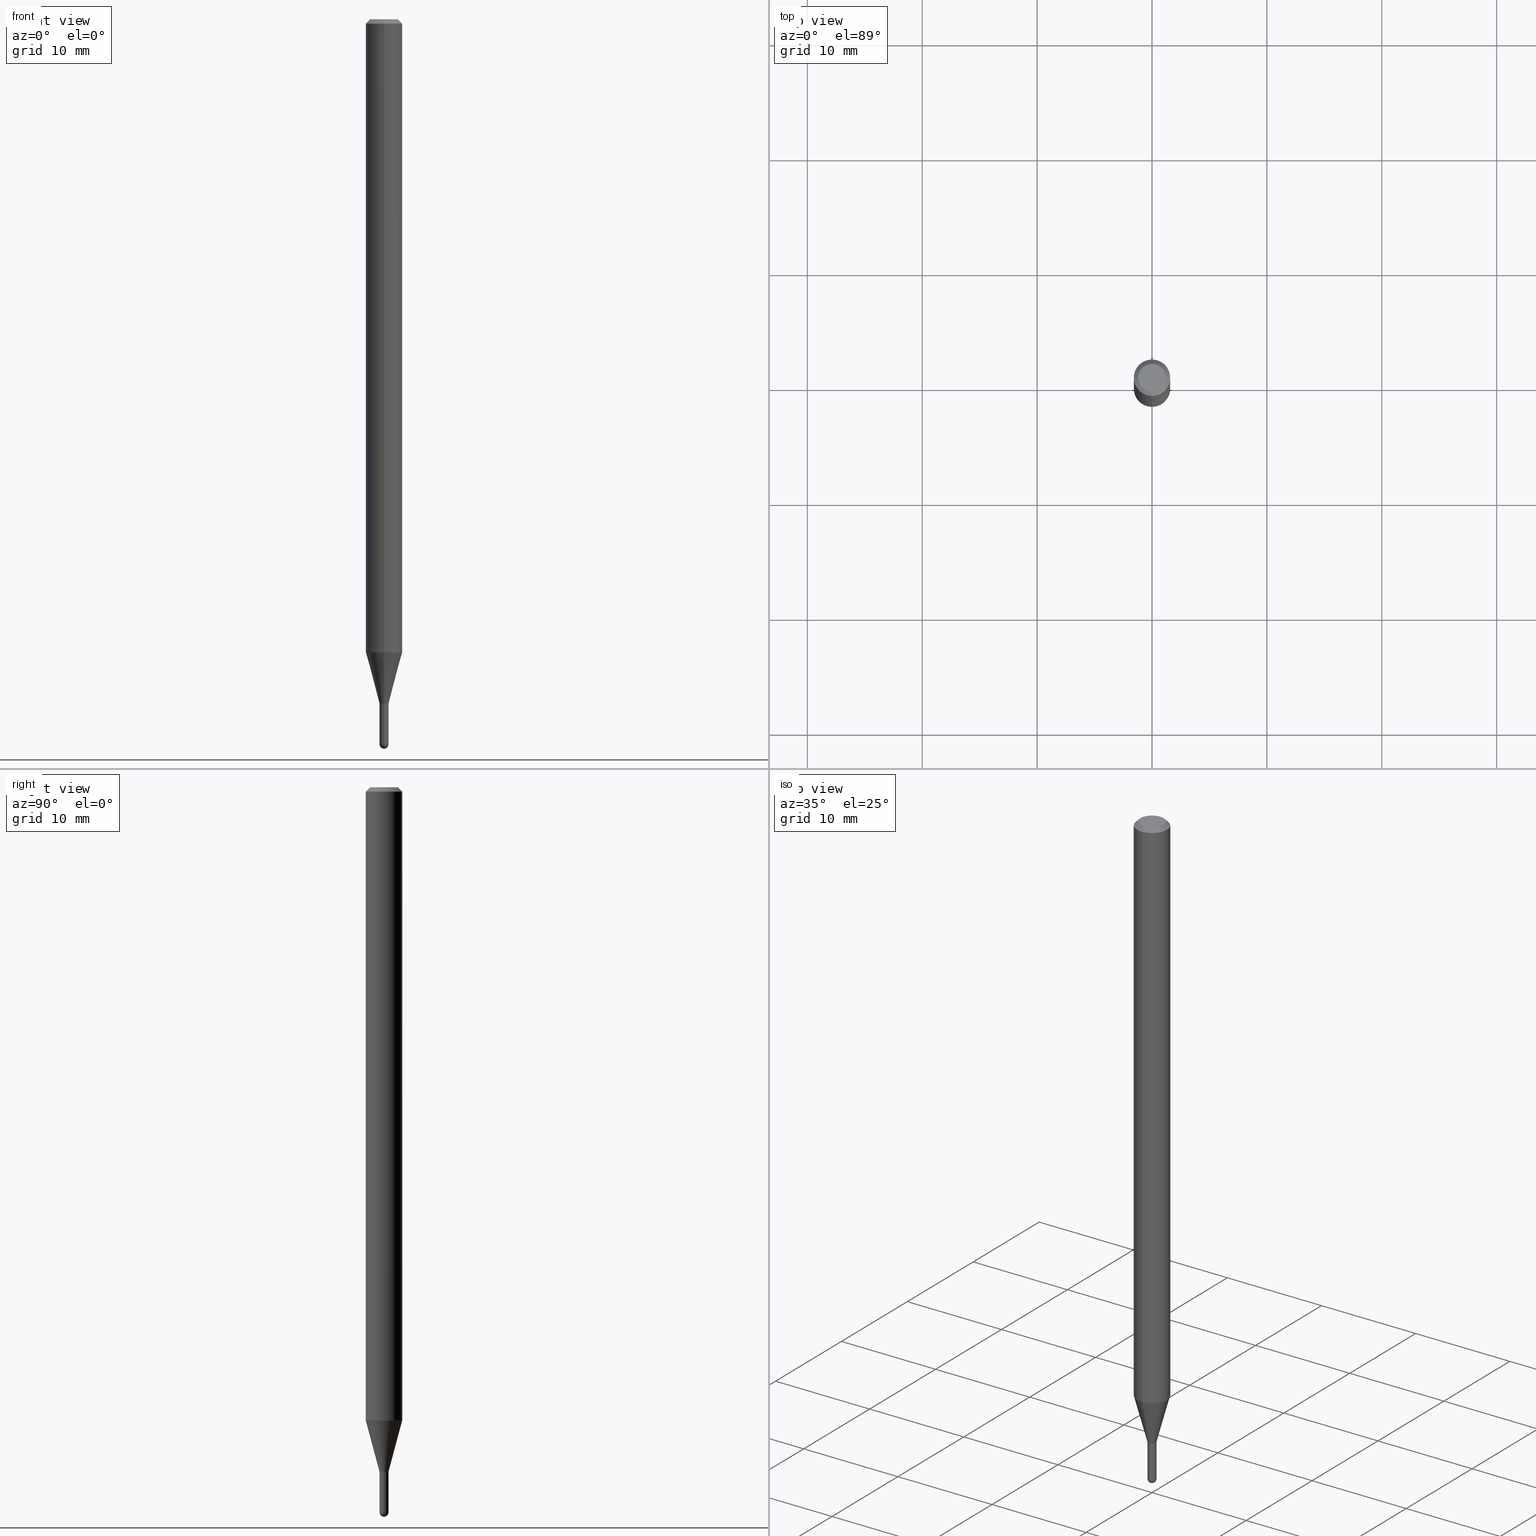
[diagram: canonical four-view strip — front | top / right | iso, engineering-drawing reading convention]
A machine part, canonical four-view strip (front | top / right | iso — engineering-drawing reading convention). The complete STEP part file that produces these views, byte-faithful:
ISO-10303-21;
HEADER;
FILE_DESCRIPTION (( 'STEP AP203' ),
    '1' );
FILE_NAME ('04459.STEP',
    '2024-03-08T19:44:21',
    ( '' ),
    ( '' ),
    'SwSTEP 2.0',
    'SolidWorks 2023',
    '' );
FILE_SCHEMA (( 'CONFIG_CONTROL_DESIGN' ));
ENDSEC;

DATA;
#1 = MANIFOLD_SOLID_BREP ( 'Body-Move/Copy2[2]', #462 ) ;
#2 = ADVANCED_FACE ( 'NONE', ( #105 ), #267, .T. ) ;
#3 = LENGTH_MEASURE_WITH_UNIT ( LENGTH_MEASURE( 0.02539999999999999897 ), #55 );
#4 = VECTOR ( 'NONE', #459, 39.37007874015748854 ) ;
#5 = DIRECTION ( 'NONE',  ( -2.445469596993278567E-29, 3.491480206360876224E-15, 1.000000000000000000 ) ) ;
#6 = ORIENTED_EDGE ( 'NONE', *, *, #116, .T. ) ;
#7 = LOCAL_TIME ( 14, 44, 21.00000000000000000, #242 ) ;
#8 = ORIENTED_EDGE ( 'NONE', *, *, #496, .T. ) ;
#9 = CARTESIAN_POINT ( 'NONE',  ( 5.733403470150743231E-29, -8.185775343813075458E-15, -2.344500000000000473 ) ) ;
#10 = SPHERICAL_SURFACE ( 'NONE', #281, 0.01549999999999993917 ) ;
#11 = VERTEX_POINT ( 'NONE', #396 ) ;
#12 = DIRECTION ( 'NONE',  ( -6.982962677686265922E-15, -1.000000000000000000, 0.000000000000000000 ) ) ;
#13 = DIRECTION ( 'NONE',  ( -2.445469596993278567E-29, 3.491480206360876224E-15, 1.000000000000000000 ) ) ;
#14 = DIRECTION ( 'NONE',  ( -2.445469596993278567E-29, 3.491480206360876224E-15, 1.000000000000000000 ) ) ;
#15 = AXIS2_PLACEMENT_3D ( 'NONE', #337, #361, #80 ) ;
#16 = ORIENTED_EDGE ( 'NONE', *, *, #116, .F. ) ;
#17 = AXIS2_PLACEMENT_3D ( 'NONE', #391, #470, #350 ) ;
#18 = LINE ( 'NONE', #285, #191 ) ;
#19 = LOCAL_TIME ( 14, 44, 21.00000000000000000, #85 ) ;
#20 = CC_DESIGN_PERSON_AND_ORGANIZATION_ASSIGNMENT ( #290, #483, ( #44 ) ) ;
#21 = FACE_OUTER_BOUND ( 'NONE', #43, .T. ) ;
#22 = DATE_AND_TIME ( #400, #97 ) ;
#23 = AXIS2_PLACEMENT_3D ( 'NONE', #477, #14, #76 ) ;
#24 = CC_DESIGN_PERSON_AND_ORGANIZATION_ASSIGNMENT ( #408, #139, ( #443 ) ) ;
#25 = ORIENTED_EDGE ( 'NONE', *, *, #74, .F. ) ;
#26 = ORIENTED_EDGE ( 'NONE', *, *, #338, .T. ) ;
#27 = AXIS2_PLACEMENT_3D ( 'NONE', #255, #485, #12 ) ;
#28 = AXIS2_PLACEMENT_3D ( 'NONE', #456, #180, #184 ) ;
#29 = CARTESIAN_POINT ( 'NONE',  ( -1.082359215040773354E-16, -0.01550000000000783910, -2.345000000000000195 ) ) ;
#30 = ORIENTED_EDGE ( 'NONE', *, *, #299, .T. ) ;
#31 = DIRECTION ( 'NONE',  ( -2.445469596993278847E-29, 3.491480206360875830E-15, 1.000000000000000000 ) ) ;
#32 = APPROVAL ( #220, 'UNSPECIFIED' ) ;
#33 = CARTESIAN_POINT ( 'NONE',  ( 5.734624350504145902E-29, -8.187523739587176748E-15, -2.345000000000000195 ) ) ;
#34 = ADVANCED_FACE ( 'NONE', ( #179 ), #169, .T. ) ;
#35 = CIRCLE ( 'NONE', #23, 0.01550000000000019765 ) ;
#36 = CARTESIAN_POINT ( 'NONE',  ( 6.074441741218743853E-29, -8.676483588894474032E-15, -2.484500000000000153 ) ) ;
#37 = AXIS2_PLACEMENT_3D ( 'NONE', #33, #113, #394 ) ;
#38 = CARTESIAN_POINT ( 'NONE',  ( 6.075767248966972494E-29, -8.674585386355795965E-15, -2.484500000000000153 ) ) ;
#39 = ORIENTED_EDGE ( 'NONE', *, *, #386, .F. ) ;
#40 = APPROVAL_STATUS ( 'not_yet_approved' ) ;
#41 = ADVANCED_FACE ( 'NONE', ( #436 ), #311, .T. ) ;
#42 = DIRECTION ( 'NONE',  ( -4.851104656540964275E-15, -0.7071067811865500152, -0.7071067811865450192 ) ) ;
#43 = EDGE_LOOP ( 'NONE', ( #445, #273 ) ) ;
#44 = PRODUCT_DEFINITION ( 'UNKNOWN', '', #193, #117 ) ;
#45 = DIRECTION ( 'NONE',  ( -2.445469596993278567E-29, 3.491480206360875830E-15, 1.000000000000000000 ) ) ;
#46 = APPROVAL_ROLE ( '' ) ;
#47 = AXIS2_PLACEMENT_3D ( 'NONE', #120, #5, #444 ) ;
#48 = VERTEX_POINT ( 'NONE', #328 ) ;
#49 = CARTESIAN_POINT ( 'NONE',  ( -1.047444401652366332E-16, -0.01500000000000818734, -2.345000000000000195 ) ) ;
#50 = DATE_TIME_ROLE ( 'creation_date' ) ;
#51 = DIRECTION ( 'NONE',  ( -6.982962677686265922E-15, -1.000000000000000000, 4.370956789862821150E-15 ) ) ;
#52 = VERTEX_POINT ( 'NONE', #322 ) ;
#53 = EDGE_LOOP ( 'NONE', ( #449, #143, #30, #435 ) ) ;
#54 = CARTESIAN_POINT ( 'NONE',  ( 6.075767248966972494E-29, -8.674585386355795965E-15, -2.484500000000000153 ) ) ;
#55 =( LENGTH_UNIT ( ) NAMED_UNIT ( * ) SI_UNIT ( $, .METRE. ) );
#56 = ORIENTED_EDGE ( 'NONE', *, *, #310, .T. ) ;
#57 = CARTESIAN_POINT ( 'NONE',  ( -0.01550000000000000162, 1.101341240428155403E-16, -7.624349389895103934E-31 ) ) ;
#58 = ORIENTED_EDGE ( 'NONE', *, *, #305, .T. ) ;
#59 = DIRECTION ( 'NONE',  ( -2.445469596993278567E-29, 3.491480206360876224E-15, 1.000000000000000000 ) ) ;
#60 = CARTESIAN_POINT ( 'NONE',  ( -4.364351673553916201E-16, -0.06250000000000000000, 2.182175128975547640E-16 ) ) ;
#61 = APPROVAL ( #208, 'UNSPECIFIED' ) ;
#62 = ORGANIZATION ( 'UNSPECIFIED', 'UNSPECIFIED', '' ) ;
#63 = DIRECTION ( 'NONE',  ( 5.024295867790934632E-15, 0.7071067811869542474, 0.7071067811861405650 ) ) ;
#64 = CARTESIAN_POINT ( 'NONE',  ( -0.01549999999999999989, -8.320920438928671125E-15, -2.345000000000000195 ) ) ;
#65 = DIRECTION ( 'NONE',  ( -2.445468806185136597E-29, 3.491481338843145583E-15, 1.000000000000000000 ) ) ;
#66 = AXIS2_PLACEMENT_3D ( 'NONE', #421, #68, #346 ) ;
#67 = DIRECTION ( 'NONE',  ( -2.445468806185136597E-29, 3.491481338843145583E-15, 1.000000000000000000 ) ) ;
#68 = DIRECTION ( 'NONE',  ( 2.445469596993278567E-29, -3.491480206360875830E-15, -1.000000000000000000 ) ) ;
#69 = ORIENTED_EDGE ( 'NONE', *, *, #107, .F. ) ;
#70 = DIRECTION ( 'NONE',  ( -2.445469596993278847E-29, 3.491480206360875830E-15, 1.000000000000000000 ) ) ;
#71 = CIRCLE ( 'NONE', #15, 0.04749999999999999362 ) ;
#72 = AXIS2_PLACEMENT_3D ( 'NONE', #226, #461, #115 ) ;
#73 = PERSON_AND_ORGANIZATION ( #256, #62 ) ;
#74 = EDGE_CURVE ( 'NONE', #420, #402, #492, .T. ) ;
#75 = DIRECTION ( 'NONE',  ( 2.445469596993278567E-29, -3.491480206360876224E-15, -1.000000000000000000 ) ) ;
#76 = DIRECTION ( 'NONE',  ( -6.982962677686266711E-15, -1.000000000000000000, 0.000000000000000000 ) ) ;
#77 = PERSON_AND_ORGANIZATION_ROLE ( 'classification_officer' ) ;
#78 = VERTEX_POINT ( 'NONE', #219 ) ;
#79 = ORIENTED_EDGE ( 'NONE', *, *, #310, .F. ) ;
#80 = DIRECTION ( 'NONE',  ( -6.982962677686266711E-15, -1.000000000000000000, 3.491480206360876619E-15 ) ) ;
#81 =( NAMED_UNIT ( * ) PLANE_ANGLE_UNIT ( ) SI_UNIT ( $, .RADIAN. ) );
#82 = CIRCLE ( 'NONE', #27, 0.01549999999999965121 ) ;
#83 = AXIS2_PLACEMENT_3D ( 'NONE', #142, #104, #266 ) ;
#84 = DIRECTION ( 'NONE',  ( 6.982962677686265922E-15, 1.000000000000000000, -3.483106191921935554E-15 ) ) ;
#85 = COORDINATED_UNIVERSAL_TIME_OFFSET ( 5, 0, .BEHIND. ) ;
#86 = DIRECTION ( 'NONE',  ( -1.000000000000000000, 6.982962677686265922E-15, -4.883557194083112340E-29 ) ) ;
#87 = ORIENTED_EDGE ( 'NONE', *, *, #377, .T. ) ;
#88 = CARTESIAN_POINT ( 'NONE',  ( 5.734624350504145902E-29, -8.187523739587176748E-15, -2.345000000000000195 ) ) ;
#89 = FACE_OUTER_BOUND ( 'NONE', #309, .T. ) ;
#90 = VERTEX_POINT ( 'NONE', #412 ) ;
#91 = EDGE_LOOP ( 'NONE', ( #25, #340, #489, #287, #181 ) ) ;
#92 = CARTESIAN_POINT ( 'NONE',  ( 3.668204395489934070E-31, -5.237220309541337608E-17, -0.01500000000000006710 ) ) ;
#93 = EDGE_CURVE ( 'NONE', #52, #402, #137, .T. ) ;
#94 = ORIENTED_EDGE ( 'NONE', *, *, #338, .F. ) ;
#95 = VECTOR ( 'NONE', #63, 39.37007874015748854 ) ;
#96 = DIRECTION ( 'NONE',  ( -6.982962677686266711E-15, -1.000000000000000000, 3.491480206360876619E-15 ) ) ;
#97 = LOCAL_TIME ( 14, 44, 21.00000000000000000, #429 ) ;
#98 = ORIENTED_EDGE ( 'NONE', *, *, #496, .F. ) ;
#99 = CLOSED_SHELL ( 'NONE', ( #508, #357, #440, #414, #422 ) ) ;
#100 = APPROVAL_DATE_TIME ( #387, #390 ) ;
#101 = EDGE_CURVE ( 'NONE', #254, #48, #18, .T. ) ;
#102 = EDGE_CURVE ( 'NONE', #465, #279, #35, .T. ) ;
#103 = DIRECTION ( 'NONE',  ( -6.982962677686265922E-15, -1.000000000000000000, 3.491480206360876224E-15 ) ) ;
#104 = DIRECTION ( 'NONE',  ( -2.445469596993278567E-29, 3.491480206360876224E-15, 1.000000000000000000 ) ) ;
#105 = FACE_OUTER_BOUND ( 'NONE', #418, .T. ) ;
#106 = CYLINDRICAL_SURFACE ( 'NONE', #343, 0.01550000000000000162 ) ;
#107 = EDGE_CURVE ( 'NONE', #509, #380, #82, .T. ) ;
#108 = AXIS2_PLACEMENT_3D ( 'NONE', #210, #75, #167 ) ;
#109 = FACE_OUTER_BOUND ( 'NONE', #428, .T. ) ;
#110 = EDGE_LOOP ( 'NONE', ( #375, #199, #288, #497 ) ) ;
#111 = DIRECTION ( 'NONE',  ( -2.445469596993278567E-29, 3.491480206360876224E-15, 1.000000000000000000 ) ) ;
#112 = FACE_OUTER_BOUND ( 'NONE', #175, .T. ) ;
#113 = DIRECTION ( 'NONE',  ( -2.445468806185136597E-29, 3.491481338843145583E-15, 1.000000000000000000 ) ) ;
#114 = ORIENTED_EDGE ( 'NONE', *, *, #93, .T. ) ;
#115 = DIRECTION ( 'NONE',  ( -6.982962677686265922E-15, -1.000000000000000000, 0.000000000000000000 ) ) ;
#116 = EDGE_CURVE ( 'NONE', #48, #11, #505, .T. ) ;
#117 = DESIGN_CONTEXT ( 'detailed design', #144, 'design' ) ;
#118 = CIRCLE ( 'NONE', #430, 0.04749999999999999362 ) ;
#119 = PERSON_AND_ORGANIZATION ( #256, #62 ) ;
#120 = CARTESIAN_POINT ( 'NONE',  ( 0.000000000000000000, 0.000000000000000000, 0.000000000000000000 ) ) ;
#121 = EDGE_CURVE ( 'NONE', #78, #133, #378, .T. ) ;
#122 = PERSON_AND_ORGANIZATION ( #256, #62 ) ;
#123 = CARTESIAN_POINT ( 'NONE',  ( 5.734626204949238738E-29, -8.187521083916256548E-15, -2.345000000000000195 ) ) ;
#124 = ORIENTED_EDGE ( 'NONE', *, *, #102, .T. ) ;
#125 = VERTEX_POINT ( 'NONE', #164 ) ;
#126 = DIRECTION ( 'NONE',  ( -2.445468806185136877E-29, 3.491481338843145188E-15, 1.000000000000000000 ) ) ;
#127 = DIRECTION ( 'NONE',  ( -6.982962677686265922E-15, -1.000000000000000000, 3.483106191921935554E-15 ) ) ;
#128 = PERSON_AND_ORGANIZATION_ROLE ( 'design_supplier' ) ;
#129 = CIRCLE ( 'NONE', #17, 0.01499999999999999944 ) ;
#130 = DIRECTION ( 'NONE',  ( -2.445468806185136597E-29, 3.491481338843145583E-15, 1.000000000000000000 ) ) ;
#131 = EDGE_CURVE ( 'NONE', #125, #52, #490, .T. ) ;
#132 = LINE ( 'NONE', #399, #413 ) ;
#133 = VERTEX_POINT ( 'NONE', #298 ) ;
#134 = ORIENTED_EDGE ( 'NONE', *, *, #245, .F. ) ;
#135 = CARTESIAN_POINT ( 'NONE',  ( 3.668204395489934070E-31, -5.237220309541337608E-17, -0.01500000000000006710 ) ) ;
#136 = ORIENTED_EDGE ( 'NONE', *, *, #434, .T. ) ;
#137 = CIRCLE ( 'NONE', #415, 0.01549999999999999989 ) ;
#138 = CIRCLE ( 'NONE', #330, 0.01549999999999993917 ) ;
#139 = PERSON_AND_ORGANIZATION_ROLE ( 'design_owner' ) ;
#140 = AXIS2_PLACEMENT_3D ( 'NONE', #325, #130, #401 ) ;
#141 = LOCAL_TIME ( 14, 44, 21.00000000000000000, #205 ) ;
#142 = CARTESIAN_POINT ( 'NONE',  ( 5.734626204949238738E-29, -8.187521083916254971E-15, -2.345000000000000195 ) ) ;
#143 = ORIENTED_EDGE ( 'NONE', *, *, #107, .T. ) ;
#144 = APPLICATION_CONTEXT ( 'configuration controlled 3d designs of mechanical parts and assemblies' ) ;
#145 = ADVANCED_FACE ( 'NONE', ( #21 ), #214, .F. ) ;
#146 = CARTESIAN_POINT ( 'NONE',  ( 4.440892098500625669E-16, 0.06250000000000000000, -2.182175128975547640E-16 ) ) ;
#147 = PRODUCT_RELATED_PRODUCT_CATEGORY ( 'detail', '', ( #443 ) ) ;
#148 = DIRECTION ( 'NONE',  ( 2.438088387897960049E-29, -3.491481338843145188E-15, -1.000000000000000000 ) ) ;
#149 = ORIENTED_EDGE ( 'NONE', *, *, #299, .F. ) ;
#150 = DIRECTION ( 'NONE',  ( -6.982962677686265922E-15, -1.000000000000000000, 3.491480206360876224E-15 ) ) ;
#151 = AXIS2_PLACEMENT_3D ( 'NONE', #450, #260, #446 ) ;
#152 = DIRECTION ( 'NONE',  ( -2.445468806185136597E-29, 3.491481338843145583E-15, 1.000000000000000000 ) ) ;
#153 = DIRECTION ( 'NONE',  ( -6.982962677686265922E-15, -1.000000000000000000, 4.370956789862821150E-15 ) ) ;
#154 = DIRECTION ( 'NONE',  ( 1.000000000000000000, 0.000000000000000000, 0.000000000000000000 ) ) ;
#155 = EDGE_CURVE ( 'NONE', #11, #48, #222, .T. ) ;
#156 = AXIS2_PLACEMENT_3D ( 'NONE', #92, #168, #84 ) ;
#157 = AXIS2_PLACEMENT_3D ( 'NONE', #38, #65, #227 ) ;
#158 = DIRECTION ( 'NONE',  ( 0.000000000000000000, 0.000000000000000000, 1.000000000000000000 ) ) ;
#159 = DIRECTION ( 'NONE',  ( -6.982962677686265922E-15, -1.000000000000000000, 0.000000000000000000 ) ) ;
#160 = ORIENTED_EDGE ( 'NONE', *, *, #203, .F. ) ;
#161 = DIRECTION ( 'NONE',  ( -2.445468806185136877E-29, 3.491481338843145188E-15, 1.000000000000000000 ) ) ;
#162 = CARTESIAN_POINT ( 'NONE',  ( 6.074441741218743853E-29, -8.676483588894474032E-15, -2.484500000000000153 ) ) ;
#163 = ORIENTED_EDGE ( 'NONE', *, *, #198, .T. ) ;
#164 = CARTESIAN_POINT ( 'NONE',  ( 0.01550000000000000509, -8.539290484475625100E-15, -2.484500000000000153 ) ) ;
#165 = CALENDAR_DATE ( 2024, 8, 3 ) ;
#166 = EDGE_CURVE ( 'NONE', #133, #420, #498, .T. ) ;
#167 = DIRECTION ( 'NONE',  ( 6.982962677686265922E-15, 1.000000000000000000, -3.483106191921935554E-15 ) ) ;
#168 = DIRECTION ( 'NONE',  ( 2.445469596993278567E-29, -3.491480206360876224E-15, -1.000000000000000000 ) ) ;
#169 = CONICAL_SURFACE ( 'NONE', #156, 0.06250000000000000000, 0.7853981633974483900 ) ;
#170 = AXIS2_PLACEMENT_3D ( 'NONE', #239, #370, #51 ) ;
#171 = AXIS2_PLACEMENT_3D ( 'NONE', #238, #158, #154 ) ;
#172 = CARTESIAN_POINT ( 'NONE',  ( 0.000000000000000000, 0.000000000000000000, 0.000000000000000000 ) ) ;
#173 = ORIENTED_EDGE ( 'NONE', *, *, #93, .F. ) ;
#174 = DIRECTION ( 'NONE',  ( -6.982962677686265922E-15, -1.000000000000000000, 3.491480206360875830E-15 ) ) ;
#175 = EDGE_LOOP ( 'NONE', ( #114, #303 ) ) ;
#176 = DIRECTION ( 'NONE',  ( 1.000000000000000000, -6.982962677686299843E-15, 0.000000000000000000 ) ) ;
#177 = PERSON_AND_ORGANIZATION ( #256, #62 ) ;
#178 = EDGE_CURVE ( 'NONE', #254, #491, #71, .T. ) ;
#179 = FACE_OUTER_BOUND ( 'NONE', #206, .T. ) ;
#180 = DIRECTION ( 'NONE',  ( -2.445469596993278567E-29, 3.491480206360876224E-15, 1.000000000000000000 ) ) ;
#181 = ORIENTED_EDGE ( 'NONE', *, *, #240, .F. ) ;
#182 = CONICAL_SURFACE ( 'NONE', #28, 0.01549999999999965121, 0.2617993877991576235 ) ;
#183 = DIRECTION ( 'NONE',  ( -2.445469596993278847E-29, 3.491480206360875830E-15, 1.000000000000000000 ) ) ;
#184 = DIRECTION ( 'NONE',  ( -6.982962677686265922E-15, -1.000000000000000000, 0.000000000000000000 ) ) ;
#185 = ORIENTED_EDGE ( 'NONE', *, *, #221, .F. ) ;
#186 = EDGE_CURVE ( 'NONE', #509, #251, #293, .T. ) ;
#187 = PLANE ( 'NONE',  #473 ) ;
#188 = ORIENTED_EDGE ( 'NONE', *, *, #155, .F. ) ;
#189 = CARTESIAN_POINT ( 'NONE',  ( -1.082359215040815385E-16, -0.01550000000000843585, -2.344500000000000473 ) ) ;
#190 = DIRECTION ( 'NONE',  ( -1.000000000000000000, 7.105427357601001070E-15, -4.926315508542082329E-29 ) ) ;
#191 = VECTOR ( 'NONE', #431, 39.37007874015748143 ) ;
#192 = VECTOR ( 'NONE', #31, 39.37007874015748143 ) ;
#193 = PRODUCT_DEFINITION_FORMATION_WITH_SPECIFIED_SOURCE ( 'ANY', '', #443, .NOT_KNOWN. ) ;
#194 = DIRECTION ( 'NONE',  ( -2.445468806185136597E-29, 3.491481338843145583E-15, 1.000000000000000000 ) ) ;
#195 = ORIENTED_EDGE ( 'NONE', *, *, #102, .F. ) ;
#196 = APPROVAL_ROLE ( '' ) ;
#197 = CARTESIAN_POINT ( 'NONE',  ( 1.101341240428738914E-16, 0.01549999999999195945, -2.344500000000000473 ) ) ;
#198 = EDGE_CURVE ( 'NONE', #279, #465, #280, .T. ) ;
#199 = ORIENTED_EDGE ( 'NONE', *, *, #302, .T. ) ;
#200 = LINE ( 'NONE', #433, #455 ) ;
#201 = EDGE_LOOP ( 'NONE', ( #98, #58, #211, #16 ) ) ;
#202 = DIRECTION ( 'NONE',  ( -2.445469596993278567E-29, 3.491480206360876224E-15, 1.000000000000000000 ) ) ;
#203 = EDGE_CURVE ( 'NONE', #509, #279, #132, .T. ) ;
#204 = VECTOR ( 'NONE', #426, 39.37007874015748143 ) ;
#205 = COORDINATED_UNIVERSAL_TIME_OFFSET ( 5, 0, .BEHIND. ) ;
#206 = EDGE_LOOP ( 'NONE', ( #217, #26, #336, #452 ) ) ;
#207 = CARTESIAN_POINT ( 'NONE',  ( 1.601789625199993127E-45, -2.286929585228188155E-31, -6.550028784530399367E-17 ) ) ;
#208 = APPROVAL_STATUS ( 'not_yet_approved' ) ;
#209 = DIRECTION ( 'NONE',  ( -2.445469596993278567E-29, 3.491480206360876224E-15, 1.000000000000000000 ) ) ;
#210 = CARTESIAN_POINT ( 'NONE',  ( 3.668204395489934070E-31, -5.237220309541337608E-17, -0.01500000000000006710 ) ) ;
#211 = ORIENTED_EDGE ( 'NONE', *, *, #231, .T. ) ;
#212 = DIRECTION ( 'NONE',  ( -6.982962677686266711E-15, -1.000000000000000000, 0.000000000000000000 ) ) ;
#213 = VERTEX_POINT ( 'NONE', #49 ) ;
#214 = PLANE ( 'NONE',  #215 ) ;
#215 = AXIS2_PLACEMENT_3D ( 'NONE', #482, #45, #174 ) ;
#216 = AXIS2_PLACEMENT_3D ( 'NONE', #393, #194, #356 ) ;
#217 = ORIENTED_EDGE ( 'NONE', *, *, #218, .F. ) ;
#218 = EDGE_CURVE ( 'NONE', #491, #254, #118, .T. ) ;
#219 = CARTESIAN_POINT ( 'NONE',  ( 6.113009261588727732E-29, -8.729652448377203187E-15, -2.500000000000000000 ) ) ;
#220 = APPROVAL_STATUS ( 'not_yet_approved' ) ;
#221 = EDGE_CURVE ( 'NONE', #438, #279, #223, .T. ) ;
#222 = CIRCLE ( 'NONE', #234, 0.06250000000000000000 ) ;
#223 = LINE ( 'NONE', #457, #95 ) ;
#224 = APPLICATION_CONTEXT ( 'configuration controlled 3d designs of mechanical parts and assemblies' ) ;
#225 = CARTESIAN_POINT ( 'NONE',  ( -0.01550000000000000509, -8.320920438928671125E-15, -2.484500000000000153 ) ) ;
#226 = CARTESIAN_POINT ( 'NONE',  ( 5.734626204949238738E-29, -8.187521083916254971E-15, -2.345000000000000195 ) ) ;
#227 = DIRECTION ( 'NONE',  ( 1.000000000000000000, -6.982962677686299843E-15, 0.000000000000000000 ) ) ;
#228 = CIRCLE ( 'NONE', #495, 0.01549999999999965121 ) ;
#229 = CARTESIAN_POINT ( 'NONE',  ( 5.305675216085086761E-29, -7.575093152299557168E-15, -2.169593612044267594 ) ) ;
#230 = DIRECTION ( 'NONE',  ( 6.982962677686265922E-15, 1.000000000000000000, 0.000000000000000000 ) ) ;
#231 = EDGE_CURVE ( 'NONE', #304, #11, #493, .T. ) ;
#232 = CYLINDRICAL_SURFACE ( 'NONE', #216, 0.01550000000000000162 ) ;
#233 = ORIENTED_EDGE ( 'NONE', *, *, #74, .T. ) ;
#234 = AXIS2_PLACEMENT_3D ( 'NONE', #135, #202, #127 ) ;
#235 = CIRCLE ( 'NONE', #140, 0.01550000000000000336 ) ;
#236 = DATE_AND_TIME ( #442, #7 ) ;
#237 = ORIENTED_EDGE ( 'NONE', *, *, #386, .T. ) ;
#238 = CARTESIAN_POINT ( 'NONE',  ( 0.000000000000000000, 0.000000000000000000, 0.000000000000000000 ) ) ;
#239 = CARTESIAN_POINT ( 'NONE',  ( 5.305675216085086761E-29, -7.575093152299557168E-15, -2.169593612044267594 ) ) ;
#240 = EDGE_CURVE ( 'NONE', #402, #52, #362, .T. ) ;
#241 = CARTESIAN_POINT ( 'NONE',  ( 1.101341240428703908E-16, 0.01549999999999146505, -2.345000000000000195 ) ) ;
#242 = COORDINATED_UNIVERSAL_TIME_OFFSET ( 5, 0, .BEHIND. ) ;
#243 = EDGE_LOOP ( 'NONE', ( #185, #136, #237, #411 ) ) ;
#244 = ORIENTED_EDGE ( 'NONE', *, *, #203, .T. ) ;
#245 = EDGE_CURVE ( 'NONE', #90, #125, #507, .T. ) ;
#246 = DIRECTION ( 'NONE',  ( 1.839019923739650408E-15, 0.2588190451025320082, 0.9659258262890650926 ) ) ;
#247 = AXIS2_PLACEMENT_3D ( 'NONE', #316, #209, #103 ) ;
#248 = AXIS2_PLACEMENT_3D ( 'NONE', #172, #475, #437 ) ;
#249 =( NAMED_UNIT ( * ) SI_UNIT ( $, .STERADIAN. ) SOLID_ANGLE_UNIT ( ) );
#250 = FACE_OUTER_BOUND ( 'NONE', #351, .T. ) ;
#251 = VERTEX_POINT ( 'NONE', #352 ) ;
#252 = DIRECTION ( 'NONE',  ( -6.982962677686265922E-15, -1.000000000000000000, 0.000000000000000000 ) ) ;
#253 = FACE_OUTER_BOUND ( 'NONE', #292, .T. ) ;
#254 = VERTEX_POINT ( 'NONE', #398 ) ;
#255 = CARTESIAN_POINT ( 'NONE',  ( 5.734626204949238738E-29, -8.187521083916256548E-15, -2.345000000000000195 ) ) ;
#256 = PERSON ( 'UNSPECIFIED', 'UNSPECIFIED', 'UNSPECIFIED', ('UNSPECIFIED'), ('UNSPECIFIED'), ('UNSPECIFIED') ) ;
#257 = PRODUCT_DEFINITION_SHAPE ( 'NONE', 'NONE',  #44 ) ;
#258 = CYLINDRICAL_SURFACE ( 'NONE', #47, 0.01549999999999992530 ) ;
#259 = EDGE_LOOP ( 'NONE', ( #409, #233, #173, #448, #327 ) ) ;
#260 = DIRECTION ( 'NONE',  ( 1.000000000000000000, -6.982962677686265922E-15, 4.883557194083112340E-29 ) ) ;
#261 = AXIS2_PLACEMENT_3D ( 'NONE', #123, #13, #159 ) ;
#262 = CC_DESIGN_APPROVAL ( #61, ( #193 ) ) ;
#263 = EDGE_LOOP ( 'NONE', ( #469, #365 ) ) ;
#264 = EDGE_CURVE ( 'NONE', #380, #465, #278, .T. ) ;
#265 = VECTOR ( 'NONE', #70, 39.37007874015748143 ) ;
#266 = DIRECTION ( 'NONE',  ( -6.982962677686265922E-15, -1.000000000000000000, 0.000000000000000000 ) ) ;
#267 = CYLINDRICAL_SURFACE ( 'NONE', #247, 0.06250000000000000000 ) ;
#268 = SHAPE_DEFINITION_REPRESENTATION ( #257, #348 ) ;
#269 = SPHERICAL_SURFACE ( 'NONE', #464, 0.01549999999999993917 ) ;
#270 = CARTESIAN_POINT ( 'NONE',  ( -1.082359215041365986E-16, -0.01549999999999992530, 5.411794319859331987E-17 ) ) ;
#271 = CONICAL_SURFACE ( 'NONE', #108, 0.06250000000000000000, 0.7853981633974483900 ) ;
#272 = FACE_OUTER_BOUND ( 'NONE', #263, .T. ) ;
#273 = ORIENTED_EDGE ( 'NONE', *, *, #434, .F. ) ;
#274 = CARTESIAN_POINT ( 'NONE',  ( -1.082359215040773354E-16, -0.01550000000000783910, -2.345000000000000195 ) ) ;
#275 = CARTESIAN_POINT ( 'NONE',  ( -3.773273898774340269E-16, -0.04749999999999999362, 1.003450219568376161E-16 ) ) ;
#276 = CC_DESIGN_DATE_AND_TIME_ASSIGNMENT ( #296, #494, ( #423 ) ) ;
#277 = PLANE ( 'NONE',  #66 ) ;
#278 = LINE ( 'NONE', #270, #192 ) ;
#279 = VERTEX_POINT ( 'NONE', #197 ) ;
#280 = CIRCLE ( 'NONE', #341, 0.01550000000000019765 ) ;
#281 = AXIS2_PLACEMENT_3D ( 'NONE', #162, #86, #286 ) ;
#282 = DIMENSIONAL_EXPONENTS ( 1.000000000000000000, 0.000000000000000000, 0.000000000000000000, 0.000000000000000000, 0.000000000000000000, 0.000000000000000000, 0.000000000000000000 ) ;
#283 = ADVANCED_FACE ( 'NONE', ( #389 ), #501, .T. ) ;
#284 = CALENDAR_DATE ( 2024, 8, 3 ) ;
#285 = CARTESIAN_POINT ( 'NONE',  ( 4.364351673553919652E-16, 0.06249999999999995143, -0.01500000000000028394 ) ) ;
#286 = DIRECTION ( 'NONE',  ( 6.982962677686265922E-15, 1.000000000000000000, 0.000000000000000000 ) ) ;
#287 = ORIENTED_EDGE ( 'NONE', *, *, #131, .T. ) ;
#288 = ORIENTED_EDGE ( 'NONE', *, *, #353, .F. ) ;
#289 = DIRECTION ( 'NONE',  ( -2.445469596993278847E-29, 3.491480206360875830E-15, 1.000000000000000000 ) ) ;
#290 = PERSON_AND_ORGANIZATION ( #256, #62 ) ;
#291 = CARTESIAN_POINT ( 'NONE',  ( -4.364351673553386678E-16, -0.06250000000000759115, -2.169593612044267150 ) ) ;
#292 = EDGE_LOOP ( 'NONE', ( #94, #488, #344, #6 ) ) ;
#293 = LINE ( 'NONE', #241, #373 ) ;
#294 = AXIS2_PLACEMENT_3D ( 'NONE', #54, #403, #176 ) ;
#295 =( GEOMETRIC_REPRESENTATION_CONTEXT ( 3 ) GLOBAL_UNCERTAINTY_ASSIGNED_CONTEXT ( ( #511 ) ) GLOBAL_UNIT_ASSIGNED_CONTEXT ( ( #318, #81, #249 ) ) REPRESENTATION_CONTEXT ( 'NONE', 'WORKASPACE' ) );
#296 = DATE_AND_TIME ( #363, #141 ) ;
#297 = FACE_OUTER_BOUND ( 'NONE', #110, .T. ) ;
#298 = CARTESIAN_POINT ( 'NONE',  ( 1.082359215041976613E-16, 0.01549999999999129678, -2.484500000000000153 ) ) ;
#299 = EDGE_CURVE ( 'NONE', #380, #304, #467, .T. ) ;
#300 = ORIENTED_EDGE ( 'NONE', *, *, #186, .T. ) ;
#301 = ORIENTED_EDGE ( 'NONE', *, *, #221, .T. ) ;
#302 = EDGE_CURVE ( 'NONE', #78, #90, #138, .T. ) ;
#303 = ORIENTED_EDGE ( 'NONE', *, *, #240, .T. ) ;
#304 = VERTEX_POINT ( 'NONE', #291 ) ;
#305 = EDGE_CURVE ( 'NONE', #251, #304, #486, .T. ) ;
#306 = APPROVAL_PERSON_ORGANIZATION ( #177, #61, #46 ) ;
#307 = ADVANCED_FACE ( 'NONE', ( #250 ), #319, .F. ) ;
#308 = DIRECTION ( 'NONE',  ( -1.000000000000000000, 6.982962677686265922E-15, -4.876176775795935793E-29 ) ) ;
#309 = EDGE_LOOP ( 'NONE', ( #69, #244, #163, #317 ) ) ;
#310 = EDGE_CURVE ( 'NONE', #380, #509, #228, .T. ) ;
#311 = CONICAL_SURFACE ( 'NONE', #451, 0.01499999999999999944, 0.7853981633980202659 ) ;
#312 = CONICAL_SURFACE ( 'NONE', #83, 0.01499999999999999944, 0.7853981633980202659 ) ;
#313 = DIRECTION ( 'NONE',  ( 1.000000000000000000, -6.982962677686299843E-15, 0.000000000000000000 ) ) ;
#314 = ADVANCED_FACE ( 'NONE', ( #447 ), #395, .T. ) ;
#315 = CARTESIAN_POINT ( 'NONE',  ( 2.771116669464931584E-16, 0.01549999999999146505, -2.345000000000000195 ) ) ;
#316 = CARTESIAN_POINT ( 'NONE',  ( 0.000000000000000000, 0.000000000000000000, 0.000000000000000000 ) ) ;
#317 = ORIENTED_EDGE ( 'NONE', *, *, #264, .F. ) ;
#318 =( CONVERSION_BASED_UNIT ( 'INCH', #3 ) LENGTH_UNIT ( ) NAMED_UNIT ( #282 ) );
#319 = CYLINDRICAL_SURFACE ( 'NONE', #248, 0.01549999999999992530 ) ;
#320 = CIRCLE ( 'NONE', #404, 0.06250000000000000000 ) ;
#321 = PERSON_AND_ORGANIZATION_ROLE ( 'creator' ) ;
#322 = CARTESIAN_POINT ( 'NONE',  ( 0.01549999999999999989, -8.295759661091313125E-15, -2.345000000000000195 ) ) ;
#323 = DIRECTION ( 'NONE',  ( -2.445469596993278567E-29, 3.491480206360876224E-15, 1.000000000000000000 ) ) ;
#324 = APPROVAL_DATE_TIME ( #339, #61 ) ;
#325 = CARTESIAN_POINT ( 'NONE',  ( 6.075767248966972494E-29, -8.674585386355795965E-15, -2.484500000000000153 ) ) ;
#326 = ADVANCED_FACE ( 'NONE', ( #253 ), #271, .T. ) ;
#327 = ORIENTED_EDGE ( 'NONE', *, *, #471, .T. ) ;
#328 = CARTESIAN_POINT ( 'NONE',  ( 4.440892098501160615E-16, 0.06249999999999995837, -0.01500000000000028394 ) ) ;
#329 = AXIS2_PLACEMENT_3D ( 'NONE', #407, #323, #410 ) ;
#330 = AXIS2_PLACEMENT_3D ( 'NONE', #392, #190, #484 ) ;
#331 = APPROVAL_PERSON_ORGANIZATION ( #73, #390, #196 ) ;
#332 = CARTESIAN_POINT ( 'NONE',  ( 5.734626204949238738E-29, -8.187521083916256548E-15, -2.345000000000000195 ) ) ;
#333 = EDGE_LOOP ( 'NONE', ( #382, #360, #460, #134 ) ) ;
#334 = CC_DESIGN_PERSON_AND_ORGANIZATION_ASSIGNMENT ( #432, #77, ( #423 ) ) ;
#335 = DIRECTION ( 'NONE',  ( -2.445468806185136597E-29, 3.491481338843145583E-15, 1.000000000000000000 ) ) ;
#336 = ORIENTED_EDGE ( 'NONE', *, *, #155, .T. ) ;
#337 = CARTESIAN_POINT ( 'NONE',  ( 1.601789625199993127E-45, -2.286929585228188155E-31, -6.550028784530399367E-17 ) ) ;
#338 = EDGE_CURVE ( 'NONE', #491, #11, #200, .T. ) ;
#339 = DATE_AND_TIME ( #165, #19 ) ;
#340 = ORIENTED_EDGE ( 'NONE', *, *, #353, .T. ) ;
#341 = AXIS2_PLACEMENT_3D ( 'NONE', #9, #441, #212 ) ;
#342 = FACE_OUTER_BOUND ( 'NONE', #259, .T. ) ;
#343 = AXIS2_PLACEMENT_3D ( 'NONE', #381, #67, #354 ) ;
#344 = ORIENTED_EDGE ( 'NONE', *, *, #101, .T. ) ;
#345 = CC_DESIGN_APPROVAL ( #390, ( #423 ) ) ;
#346 = DIRECTION ( 'NONE',  ( 6.982962677686265922E-15, 1.000000000000000000, -3.491480206360875830E-15 ) ) ;
#347 = ORIENTED_EDGE ( 'NONE', *, *, #377, .F. ) ;
#348 = ADVANCED_BREP_SHAPE_REPRESENTATION ( '04459', ( #510, #1, #171 ), #295 ) ;
#349 = ADVANCED_FACE ( 'NONE', ( #89 ), #258, .F. ) ;
#350 = DIRECTION ( 'NONE',  ( -6.982962677686265922E-15, -1.000000000000000000, 0.000000000000000000 ) ) ;
#351 = EDGE_LOOP ( 'NONE', ( #160, #79, #371, #124 ) ) ;
#352 = CARTESIAN_POINT ( 'NONE',  ( 4.440892098501153712E-16, 0.06249999999999240191, -2.169593612044267594 ) ) ;
#353 = EDGE_CURVE ( 'NONE', #420, #90, #235, .T. ) ;
#354 = DIRECTION ( 'NONE',  ( 1.000000000000000000, -6.982962677686266711E-15, 4.876176775795935232E-29 ) ) ;
#355 = CIRCLE ( 'NONE', #72, 0.01499999999999999944 ) ;
#356 = DIRECTION ( 'NONE',  ( 1.000000000000000000, -6.982962677686266711E-15, 4.876176775795935232E-29 ) ) ;
#357 = ADVANCED_FACE ( 'NONE', ( #297 ), #10, .T. ) ;
#358 = APPLICATION_PROTOCOL_DEFINITION ( 'international standard', 'config_control_design', 1994, #144 ) ;
#359 = DIRECTION ( 'NONE',  ( -2.445469596993278567E-29, 3.491480206360876224E-15, 1.000000000000000000 ) ) ;
#360 = ORIENTED_EDGE ( 'NONE', *, *, #121, .T. ) ;
#361 = DIRECTION ( 'NONE',  ( -2.445469596993278567E-29, 3.491480206360876224E-15, 1.000000000000000000 ) ) ;
#362 = CIRCLE ( 'NONE', #37, 0.01549999999999999989 ) ;
#363 = CALENDAR_DATE ( 2024, 8, 3 ) ;
#364 = FACE_OUTER_BOUND ( 'NONE', #53, .T. ) ;
#365 = ORIENTED_EDGE ( 'NONE', *, *, #218, .T. ) ;
#366 = DIRECTION ( 'NONE',  ( -2.445469596993278567E-29, 3.491480206360876224E-15, 1.000000000000000000 ) ) ;
#367 = MECHANICAL_CONTEXT ( 'NONE', #224, 'mechanical' ) ;
#368 = CARTESIAN_POINT ( 'NONE',  ( 5.734626204949238738E-29, -8.187521083916254971E-15, -2.345000000000000195 ) ) ;
#369 = ADVANCED_FACE ( 'NONE', ( #364 ), #182, .T. ) ;
#370 = DIRECTION ( 'NONE',  ( -2.445469596993278567E-29, 3.491480206360876224E-15, 1.000000000000000000 ) ) ;
#371 = ORIENTED_EDGE ( 'NONE', *, *, #264, .T. ) ;
#372 = CARTESIAN_POINT ( 'NONE',  ( 0.01550000000000000162, -1.082359215041371409E-16, 7.558074002483700794E-31 ) ) ;
#373 = VECTOR ( 'NONE', #246, 39.37007874015748854 ) ;
#374 = AXIS2_PLACEMENT_3D ( 'NONE', #504, #111, #150 ) ;
#375 = ORIENTED_EDGE ( 'NONE', *, *, #121, .F. ) ;
#376 = DIRECTION ( 'NONE',  ( 1.000000000000000000, -6.982962677686238312E-15, 0.000000000000000000 ) ) ;
#377 = EDGE_CURVE ( 'NONE', #304, #251, #320, .T. ) ;
#378 = CIRCLE ( 'NONE', #151, 0.01549999999999993917 ) ;
#379 = CIRCLE ( 'NONE', #416, 0.01550000000000000336 ) ;
#380 = VERTEX_POINT ( 'NONE', #29 ) ;
#381 = CARTESIAN_POINT ( 'NONE',  ( 0.000000000000000000, 0.000000000000000000, 0.000000000000000000 ) ) ;
#382 = ORIENTED_EDGE ( 'NONE', *, *, #302, .F. ) ;
#383 = EDGE_CURVE ( 'NONE', #213, #438, #355, .T. ) ;
#384 = DIRECTION ( 'NONE',  ( -1.000000000000000000, 6.982962677686265922E-15, -4.883557194083112340E-29 ) ) ;
#385 = VECTOR ( 'NONE', #183, 39.37007874015748143 ) ;
#386 = EDGE_CURVE ( 'NONE', #213, #465, #388, .T. ) ;
#387 = DATE_AND_TIME ( #284, #487 ) ;
#388 = LINE ( 'NONE', #463, #4 ) ;
#389 = FACE_OUTER_BOUND ( 'NONE', #201, .T. ) ;
#390 = APPROVAL ( #40, 'UNSPECIFIED' ) ;
#391 = CARTESIAN_POINT ( 'NONE',  ( 5.734626204949238738E-29, -8.187521083916254971E-15, -2.345000000000000195 ) ) ;
#392 = CARTESIAN_POINT ( 'NONE',  ( 6.074441741218743853E-29, -8.676483588894474032E-15, -2.484500000000000153 ) ) ;
#393 = CARTESIAN_POINT ( 'NONE',  ( 0.000000000000000000, 0.000000000000000000, 0.000000000000000000 ) ) ;
#394 = DIRECTION ( 'NONE',  ( 1.000000000000000000, -6.982962677686238312E-15, 0.000000000000000000 ) ) ;
#395 = CONICAL_SURFACE ( 'NONE', #261, 0.01549999999999965121, 0.2617993877991576235 ) ;
#396 = CARTESIAN_POINT ( 'NONE',  ( -4.364351673553912750E-16, -0.06250000000000005551, -0.01499999999999984852 ) ) ;
#397 = SECURITY_CLASSIFICATION_LEVEL ( 'unclassified' ) ;
#398 = CARTESIAN_POINT ( 'NONE',  ( 3.840629472727447874E-16, 0.04749999999999999362, -2.313455976474456035E-16 ) ) ;
#399 = CARTESIAN_POINT ( 'NONE',  ( 1.101341240428149734E-16, 0.01549999999999992530, -5.411794319859331987E-17 ) ) ;
#400 = CALENDAR_DATE ( 2024, 8, 3 ) ;
#401 = DIRECTION ( 'NONE',  ( 1.000000000000000000, -6.982962677686299843E-15, 0.000000000000000000 ) ) ;
#402 = VERTEX_POINT ( 'NONE', #64 ) ;
#403 = DIRECTION ( 'NONE',  ( -2.445468806185136597E-29, 3.491481338843145583E-15, 1.000000000000000000 ) ) ;
#404 = AXIS2_PLACEMENT_3D ( 'NONE', #229, #425, #153 ) ;
#405 = APPROVAL_DATE_TIME ( #236, #32 ) ;
#406 = DIRECTION ( 'NONE',  ( -6.982962677686265922E-15, -1.000000000000000000, 0.000000000000000000 ) ) ;
#407 = CARTESIAN_POINT ( 'NONE',  ( 3.668204395489934070E-31, -5.237220309541337608E-17, -0.01500000000000006710 ) ) ;
#408 = PERSON_AND_ORGANIZATION ( #256, #62 ) ;
#409 = ORIENTED_EDGE ( 'NONE', *, *, #166, .T. ) ;
#410 = DIRECTION ( 'NONE',  ( -6.982962677686265922E-15, -1.000000000000000000, 3.483106191921935554E-15 ) ) ;
#411 = ORIENTED_EDGE ( 'NONE', *, *, #198, .F. ) ;
#412 = CARTESIAN_POINT ( 'NONE',  ( -1.101341240427545639E-16, -0.01550000000000864749, -2.484500000000000153 ) ) ;
#413 = VECTOR ( 'NONE', #289, 39.37007874015748143 ) ;
#414 = ADVANCED_FACE ( 'NONE', ( #468 ), #269, .T. ) ;
#415 = AXIS2_PLACEMENT_3D ( 'NONE', #88, #335, #376 ) ;
#416 = AXIS2_PLACEMENT_3D ( 'NONE', #502, #152, #313 ) ;
#417 = CC_DESIGN_APPROVAL ( #32, ( #44 ) ) ;
#418 = EDGE_LOOP ( 'NONE', ( #87, #8, #188, #476 ) ) ;
#419 = CC_DESIGN_DATE_AND_TIME_ASSIGNMENT ( #22, #50, ( #44 ) ) ;
#420 = VERTEX_POINT ( 'NONE', #225 ) ;
#421 = CARTESIAN_POINT ( 'NONE',  ( 3.316907271900976096E-16, 0.04749999999999999362, -1.985954537247936190E-16 ) ) ;
#422 = ADVANCED_FACE ( 'NONE', ( #500 ), #106, .T. ) ;
#423 = SECURITY_CLASSIFICATION ( '', '', #397 ) ;
#424 = CC_DESIGN_PERSON_AND_ORGANIZATION_ASSIGNMENT ( #122, #128, ( #193 ) ) ;
#425 = DIRECTION ( 'NONE',  ( -2.445469596993278567E-29, 3.491480206360876224E-15, 1.000000000000000000 ) ) ;
#426 = DIRECTION ( 'NONE',  ( -1.807323732225379838E-15, -0.2588190451025252914, 0.9659258262890670910 ) ) ;
#427 = LINE ( 'NONE', #146, #265 ) ;
#428 = EDGE_LOOP ( 'NONE', ( #480, #301, #195, #39 ) ) ;
#429 = COORDINATED_UNIVERSAL_TIME_OFFSET ( 5, 0, .BEHIND. ) ;
#430 = AXIS2_PLACEMENT_3D ( 'NONE', #207, #366, #96 ) ;
#431 = DIRECTION ( 'NONE',  ( 4.937700262164548042E-15, 0.7071067811865451302, -0.7071067811865499042 ) ) ;
#432 = PERSON_AND_ORGANIZATION ( #256, #62 ) ;
#433 = CARTESIAN_POINT ( 'NONE',  ( -4.287811248607203282E-16, -0.06250000000000005551, -0.01499999999999984852 ) ) ;
#434 = EDGE_CURVE ( 'NONE', #438, #213, #129, .T. ) ;
#435 = ORIENTED_EDGE ( 'NONE', *, *, #305, .F. ) ;
#436 = FACE_OUTER_BOUND ( 'NONE', #243, .T. ) ;
#437 = DIRECTION ( 'NONE',  ( -6.982962677686265922E-15, -1.000000000000000000, 3.491480206360876224E-15 ) ) ;
#438 = VERTEX_POINT ( 'NONE', #506 ) ;
#439 = VECTOR ( 'NONE', #126, 39.37007874015748143 ) ;
#440 = ADVANCED_FACE ( 'NONE', ( #112 ), #187, .F. ) ;
#441 = DIRECTION ( 'NONE',  ( -2.445469596993278567E-29, 3.491480206360876224E-15, 1.000000000000000000 ) ) ;
#442 = CALENDAR_DATE ( 2024, 8, 3 ) ;
#443 = PRODUCT ( '04459', '04459', '', ( #367 ) ) ;
#444 = DIRECTION ( 'NONE',  ( -6.982962677686265922E-15, -1.000000000000000000, 3.491480206360876224E-15 ) ) ;
#445 = ORIENTED_EDGE ( 'NONE', *, *, #383, .F. ) ;
#446 = DIRECTION ( 'NONE',  ( 6.982962677686265922E-15, 1.000000000000000000, 0.000000000000000000 ) ) ;
#447 = FACE_OUTER_BOUND ( 'NONE', #481, .T. ) ;
#448 = ORIENTED_EDGE ( 'NONE', *, *, #131, .F. ) ;
#449 = ORIENTED_EDGE ( 'NONE', *, *, #186, .F. ) ;
#450 = CARTESIAN_POINT ( 'NONE',  ( 6.074441741218743853E-29, -8.676483588894474032E-15, -2.484500000000000153 ) ) ;
#451 = AXIS2_PLACEMENT_3D ( 'NONE', #368, #59, #252 ) ;
#452 = ORIENTED_EDGE ( 'NONE', *, *, #101, .F. ) ;
#453 = ADVANCED_FACE ( 'NONE', ( #109 ), #312, .T. ) ;
#454 = VECTOR ( 'NONE', #161, 39.37007874015748143 ) ;
#455 = VECTOR ( 'NONE', #42, 39.37007874015748143 ) ;
#456 = CARTESIAN_POINT ( 'NONE',  ( 5.734626204949238738E-29, -8.187521083916256548E-15, -2.345000000000000195 ) ) ;
#457 = CARTESIAN_POINT ( 'NONE',  ( 1.065814103640723643E-16, 0.01499999999999181328, -2.345000000000000195 ) ) ;
#458 = ADVANCED_FACE ( 'NONE', ( #272 ), #277, .F. ) ;
#459 = DIRECTION ( 'NONE',  ( -4.937700262167370586E-15, -0.7071067811869493624, 0.7071067811861454500 ) ) ;
#460 = ORIENTED_EDGE ( 'NONE', *, *, #471, .F. ) ;
#461 = DIRECTION ( 'NONE',  ( -2.445469596993278567E-29, 3.491480206360876224E-15, 1.000000000000000000 ) ) ;
#462 = CLOSED_SHELL ( 'NONE', ( #349, #453, #34, #2, #314, #369, #283, #326, #458, #145, #41, #307 ) ) ;
#463 = CARTESIAN_POINT ( 'NONE',  ( -1.047444401652366332E-16, -0.01500000000000818734, -2.345000000000000195 ) ) ;
#464 = AXIS2_PLACEMENT_3D ( 'NONE', #36, #384, #230 ) ;
#465 = VERTEX_POINT ( 'NONE', #189 ) ;
#466 = CC_DESIGN_SECURITY_CLASSIFICATION ( #423, ( #193 ) ) ;
#467 = LINE ( 'NONE', #274, #204 ) ;
#468 = FACE_OUTER_BOUND ( 'NONE', #333, .T. ) ;
#469 = ORIENTED_EDGE ( 'NONE', *, *, #178, .T. ) ;
#470 = DIRECTION ( 'NONE',  ( -2.445469596993278567E-29, 3.491480206360876224E-15, 1.000000000000000000 ) ) ;
#471 = EDGE_CURVE ( 'NONE', #125, #133, #379, .T. ) ;
#472 = APPLICATION_PROTOCOL_DEFINITION ( 'international standard', 'config_control_design', 1994, #224 ) ;
#473 = AXIS2_PLACEMENT_3D ( 'NONE', #503, #148, #308 ) ;
#474 = PERSON_AND_ORGANIZATION ( #256, #62 ) ;
#475 = DIRECTION ( 'NONE',  ( -2.445469596993278567E-29, 3.491480206360876224E-15, 1.000000000000000000 ) ) ;
#476 = ORIENTED_EDGE ( 'NONE', *, *, #231, .F. ) ;
#477 = CARTESIAN_POINT ( 'NONE',  ( 5.733403470150743231E-29, -8.185775343813075458E-15, -2.344500000000000473 ) ) ;
#478 = APPROVAL_ROLE ( '' ) ;
#479 = CC_DESIGN_PERSON_AND_ORGANIZATION_ASSIGNMENT ( #119, #321, ( #193 ) ) ;
#480 = ORIENTED_EDGE ( 'NONE', *, *, #383, .T. ) ;
#481 = EDGE_LOOP ( 'NONE', ( #56, #300, #347, #149 ) ) ;
#482 = CARTESIAN_POINT ( 'NONE',  ( 5.734626204949238738E-29, -8.187521083916256548E-15, -2.345000000000000195 ) ) ;
#483 = PERSON_AND_ORGANIZATION_ROLE ( 'creator' ) ;
#484 = DIRECTION ( 'NONE',  ( -7.105427357601001070E-15, -1.000000000000000000, 0.000000000000000000 ) ) ;
#485 = DIRECTION ( 'NONE',  ( -2.445469596993278567E-29, 3.491480206360876224E-15, 1.000000000000000000 ) ) ;
#486 = CIRCLE ( 'NONE', #170, 0.06250000000000000000 ) ;
#487 = LOCAL_TIME ( 14, 44, 21.00000000000000000, #512 ) ;
#488 = ORIENTED_EDGE ( 'NONE', *, *, #178, .F. ) ;
#489 = ORIENTED_EDGE ( 'NONE', *, *, #245, .T. ) ;
#490 = LINE ( 'NONE', #372, #439 ) ;
#491 = VERTEX_POINT ( 'NONE', #275 ) ;
#492 = LINE ( 'NONE', #57, #454 ) ;
#493 = LINE ( 'NONE', #60, #385 ) ;
#494 = DATE_TIME_ROLE ( 'classification_date' ) ;
#495 = AXIS2_PLACEMENT_3D ( 'NONE', #332, #359, #406 ) ;
#496 = EDGE_CURVE ( 'NONE', #251, #48, #427, .T. ) ;
#497 = ORIENTED_EDGE ( 'NONE', *, *, #166, .F. ) ;
#498 = CIRCLE ( 'NONE', #294, 0.01550000000000000336 ) ;
#499 = APPROVAL_PERSON_ORGANIZATION ( #474, #32, #478 ) ;
#500 = FACE_OUTER_BOUND ( 'NONE', #91, .T. ) ;
#501 = CYLINDRICAL_SURFACE ( 'NONE', #374, 0.06250000000000000000 ) ;
#502 = CARTESIAN_POINT ( 'NONE',  ( 6.075767248966972494E-29, -8.674585386355795965E-15, -2.484500000000000153 ) ) ;
#503 = CARTESIAN_POINT ( 'NONE',  ( 1.082359215041944689E-16, 0.01549999999999181199, -2.345000000000000195 ) ) ;
#504 = CARTESIAN_POINT ( 'NONE',  ( 0.000000000000000000, 0.000000000000000000, 0.000000000000000000 ) ) ;
#505 = CIRCLE ( 'NONE', #329, 0.06250000000000000000 ) ;
#506 = CARTESIAN_POINT ( 'NONE',  ( 1.083577672034733189E-16, 0.01499999999999181328, -2.345000000000000195 ) ) ;
#507 = CIRCLE ( 'NONE', #157, 0.01550000000000000336 ) ;
#508 = ADVANCED_FACE ( 'NONE', ( #342 ), #232, .T. ) ;
#509 = VERTEX_POINT ( 'NONE', #315 ) ;
#510 = MANIFOLD_SOLID_BREP ( 'Body-Move/Copy2[1]', #99 ) ;
#511 = UNCERTAINTY_MEASURE_WITH_UNIT (LENGTH_MEASURE( 1.000000000000000082E-05 ), #318, 'distance_accuracy_value', 'NONE');
#512 = COORDINATED_UNIVERSAL_TIME_OFFSET ( 5, 0, .BEHIND. ) ;
ENDSEC;
END-ISO-10303-21;
